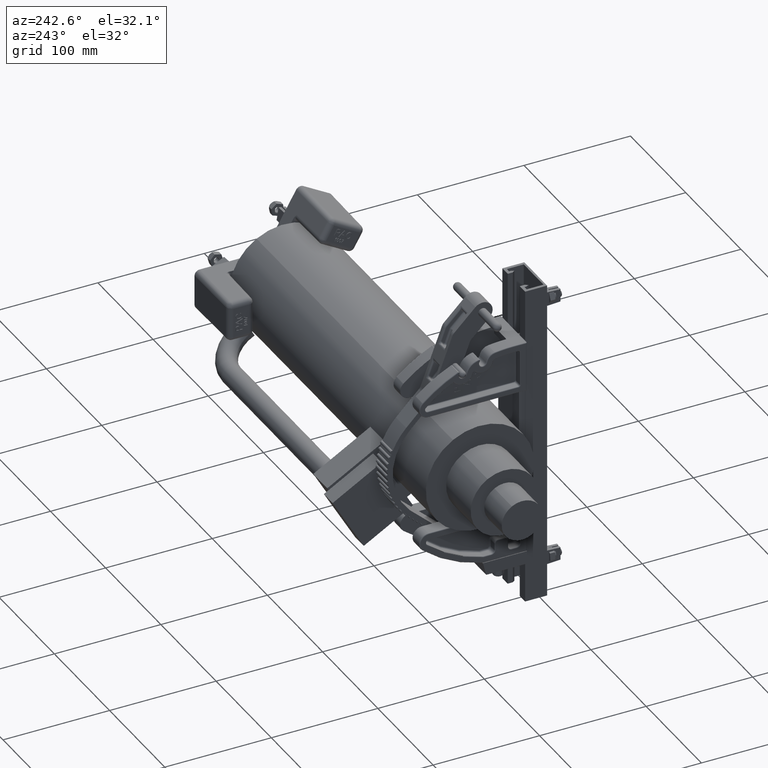
[diagram: clean part render]
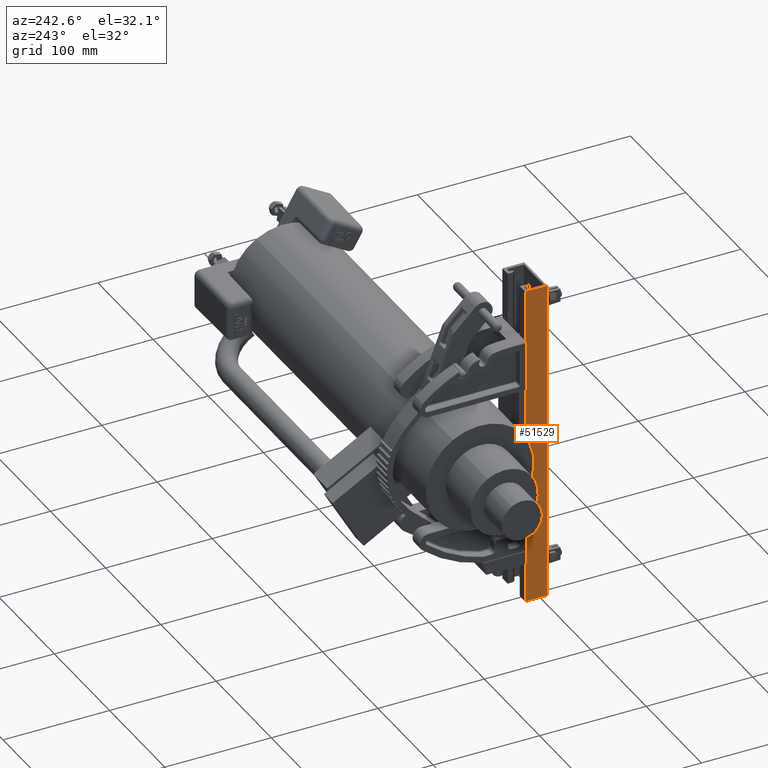
[diagram: same view with one face highlighted and labeled with its STEP entity id]
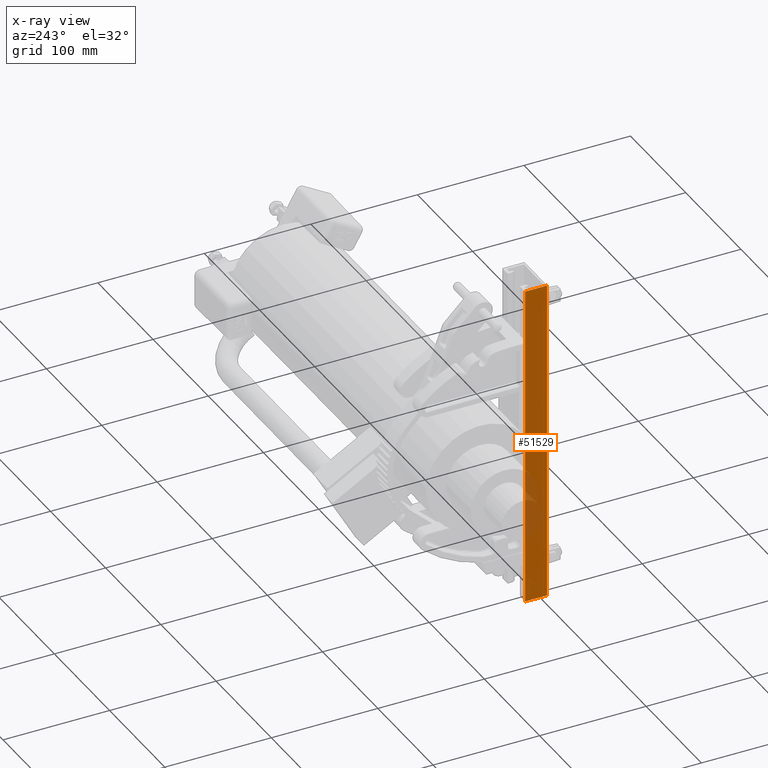
[diagram: x-ray of the same camera — body ghosted, the highlighted face saturated]
A machine part, auxiliary view. The second image highlights one B-rep face of the part: STEP entity #51529.
The next image is the same camera in x-ray: the body ghosted, the highlighted face saturated — about 12% of this face is hidden behind the body in this view.
In plain terms, the highlighted planar face has unit normal (-1, 0, 0).
Its self-contained STEP definition (entity closure, byte-faithful):
#576 = CARTESIAN_POINT ( 'NONE',  ( -0.8125000000000000000, 0.0000000000000000000, 6.000000000000000900 ) ) ;
#1587 = VERTEX_POINT ( 'NONE', #11608 ) ;
#4441 = VERTEX_POINT ( 'NONE', #45694 ) ;
#4480 = LINE ( 'NONE', #576, #37717 ) ;
#7175 = CARTESIAN_POINT ( 'NONE',  ( -0.8125000000000000000, 0.0000000000000000000, 6.000000000000000900 ) ) ;
#7675 = PLANE ( 'NONE',  #43014 ) ;
#8013 = LINE ( 'NONE', #19104, #19087 ) ;
#9332 = LINE ( 'NONE', #39628, #20415 ) ;
#10459 = DIRECTION ( 'NONE',  ( -0.0000000000000000000, -0.0000000000000000000, -1.000000000000000000 ) ) ;
#11332 = DIRECTION ( 'NONE',  ( -0.0000000000000000000, -0.0000000000000000000, -1.000000000000000000 ) ) ;
#11608 = CARTESIAN_POINT ( 'NONE',  ( -0.8125000000000000000, 0.0000000000000000000, -6.000000000000000900 ) ) ;
#12020 = EDGE_CURVE ( 'NONE', #1587, #40902, #8013, .T. ) ;
#14546 = CARTESIAN_POINT ( 'NONE',  ( -0.8125000000000000000, 0.8125000000000000000, -6.000000000000000900 ) ) ;
#16031 = DIRECTION ( 'NONE',  ( 0.0000000000000000000, 0.0000000000000000000, 1.000000000000000000 ) ) ;
#19087 = VECTOR ( 'NONE', #35866, 39.37007874015748100 ) ;
#19104 = CARTESIAN_POINT ( 'NONE',  ( -0.8125000000000000000, 0.0000000000000000000, -6.000000000000000900 ) ) ;
#20061 = CARTESIAN_POINT ( 'NONE',  ( -0.8125000000000000000, 0.0000000000000000000, 6.000000000000000900 ) ) ;
#20415 = VECTOR ( 'NONE', #10459, 39.37007874015748100 ) ;
#23171 = ORIENTED_EDGE ( 'NONE', *, *, #12020, .F. ) ;
#24331 = EDGE_CURVE ( 'NONE', #4441, #1587, #39078, .T. ) ;
#24354 = VERTEX_POINT ( 'NONE', #49080 ) ;
#25597 = ORIENTED_EDGE ( 'NONE', *, *, #50741, .T. ) ;
#28669 = FACE_OUTER_BOUND ( 'NONE', #30233, .T. ) ;
#29722 = DIRECTION ( 'NONE',  ( 0.0000000000000000000, 1.000000000000000000, 0.0000000000000000000 ) ) ;
#30233 = EDGE_LOOP ( 'NONE', ( #23171, #52601, #32778, #25597 ) ) ;
#32778 = ORIENTED_EDGE ( 'NONE', *, *, #38520, .T. ) ;
#35866 = DIRECTION ( 'NONE',  ( 0.0000000000000000000, 1.000000000000000000, 0.0000000000000000000 ) ) ;
#37717 = VECTOR ( 'NONE', #29722, 39.37007874015748100 ) ;
#38520 = EDGE_CURVE ( 'NONE', #4441, #24354, #4480, .T. ) ;
#39078 = LINE ( 'NONE', #7175, #47561 ) ;
#39628 = CARTESIAN_POINT ( 'NONE',  ( -0.8125000000000000000, 0.8125000000000000000, 6.000000000000000900 ) ) ;
#40902 = VERTEX_POINT ( 'NONE', #14546 ) ;
#41003 = DIRECTION ( 'NONE',  ( -1.000000000000000000, 0.0000000000000000000, 0.0000000000000000000 ) ) ;
#43014 = AXIS2_PLACEMENT_3D ( 'NONE', #20061, #41003, #16031 ) ;
#45694 = CARTESIAN_POINT ( 'NONE',  ( -0.8125000000000000000, 0.0000000000000000000, 6.000000000000000900 ) ) ;
#47561 = VECTOR ( 'NONE', #11332, 39.37007874015748100 ) ;
#49080 = CARTESIAN_POINT ( 'NONE',  ( -0.8125000000000000000, 0.8125000000000000000, 6.000000000000000900 ) ) ;
#50741 = EDGE_CURVE ( 'NONE', #24354, #40902, #9332, .T. ) ;
#51529 = ADVANCED_FACE ( 'NONE', ( #28669 ), #7675, .T. ) ;
#52601 = ORIENTED_EDGE ( 'NONE', *, *, #24331, .F. ) ;